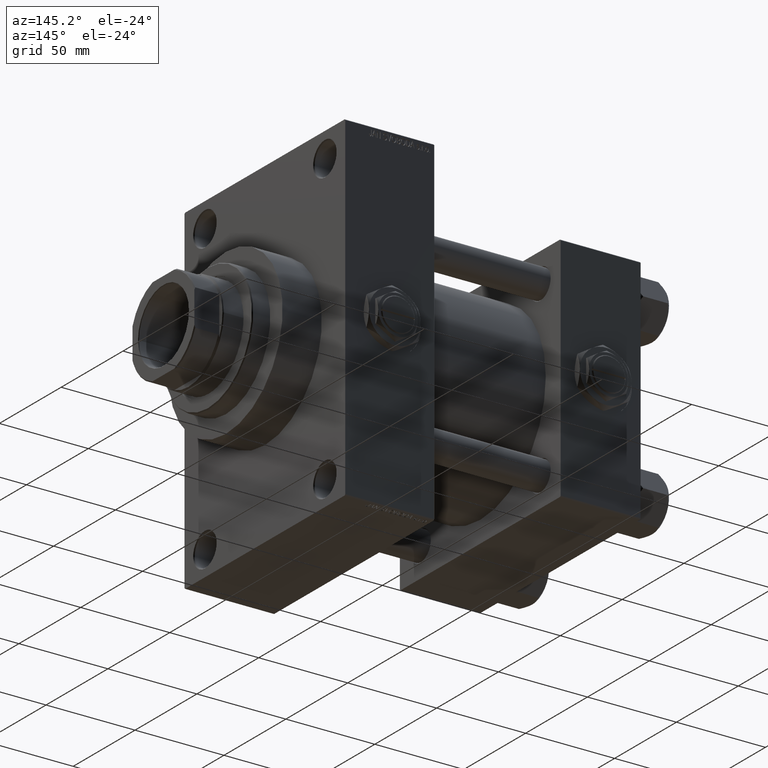
[diagram: clean part render]
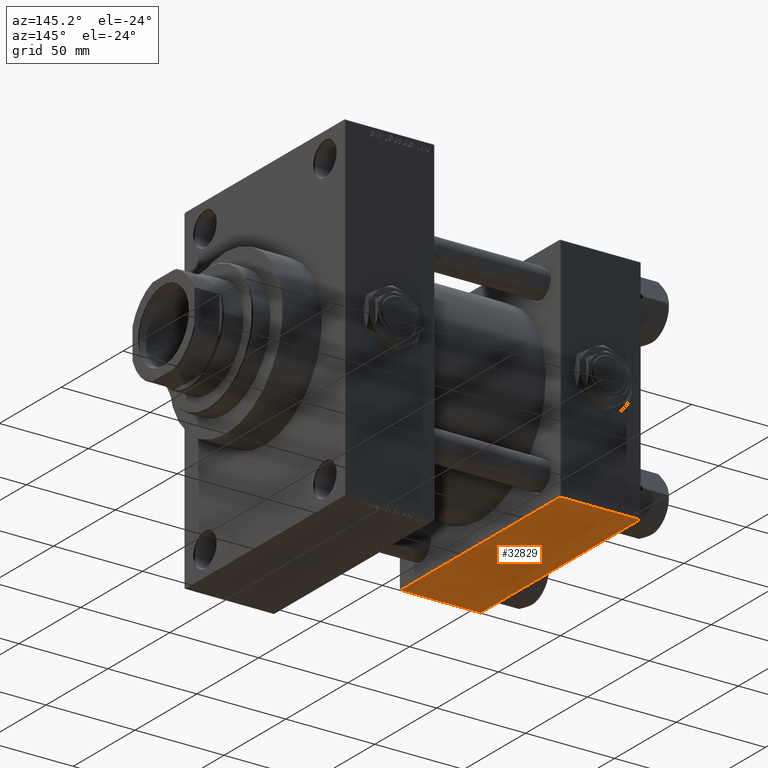
[diagram: same view with one face highlighted and labeled with its STEP entity id]
A machine part, auxiliary view. The second image highlights one B-rep face of the part: STEP entity #32829.
In plain terms, the highlighted planar face has unit normal (0, 0, -1).
Its self-contained STEP definition (entity closure, byte-faithful):
#2231 = DIRECTION ( 'NONE',  ( 0.000000000000000000, -1.000000000000000000, -1.067522139062650425E-16 ) ) ;
#2357 = VERTEX_POINT ( 'NONE', #40682 ) ;
#3667 = LINE ( 'NONE', #34437, #47727 ) ;
#5690 = ORIENTED_EDGE ( 'NONE', *, *, #28041, .T. ) ;
#7585 = CARTESIAN_POINT ( 'NONE',  ( 45.00000000000000000, 64.49999999999997158, -64.99999999999998579 ) ) ;
#9601 = PLANE ( 'NONE',  #12370 ) ;
#11979 = VECTOR ( 'NONE', #40056, 1000.000000000000000 ) ;
#12370 = AXIS2_PLACEMENT_3D ( 'NONE', #20465, #28553, #16933 ) ;
#16933 = DIRECTION ( 'NONE',  ( 0.000000000000000000, 1.000000000000000000, 1.067522139062650548E-16 ) ) ;
#17718 = EDGE_CURVE ( 'NONE', #39237, #49390, #25653, .T. ) ;
#18727 = CARTESIAN_POINT ( 'NONE',  ( 0.000000000000000000, -64.49999999999994316, -65.00000000000000000 ) ) ;
#20465 = CARTESIAN_POINT ( 'NONE',  ( 45.00000000000000000, 65.00000000000000000, -64.99999999999998579 ) ) ;
#21394 = CARTESIAN_POINT ( 'NONE',  ( 0.000000000000000000, 65.00000000000000000, -64.99999999999998579 ) ) ;
#22027 = DIRECTION ( 'NONE',  ( 1.000000000000000000, 0.000000000000000000, 0.000000000000000000 ) ) ;
#22980 = CARTESIAN_POINT ( 'NONE',  ( 45.00000000000000000, -64.49999999999994316, -65.00000000000000000 ) ) ;
#23759 = FACE_OUTER_BOUND ( 'NONE', #46925, .T. ) ;
#25653 = LINE ( 'NONE', #44348, #11979 ) ;
#27674 = EDGE_CURVE ( 'NONE', #2357, #29228, #28977, .T. ) ;
#28041 = EDGE_CURVE ( 'NONE', #49390, #29228, #3667, .T. ) ;
#28338 = VECTOR ( 'NONE', #2231, 1000.000000000000000 ) ;
#28553 = DIRECTION ( 'NONE',  ( 0.000000000000000000, 1.067522139062650548E-16, -1.000000000000000000 ) ) ;
#28977 = LINE ( 'NONE', #21394, #28338 ) ;
#29228 = VERTEX_POINT ( 'NONE', #18727 ) ;
#31764 = CARTESIAN_POINT ( 'NONE',  ( 45.00000000000000000, 64.49999999999997158, -64.99999999999998579 ) ) ;
#32829 = ADVANCED_FACE ( 'NONE', ( #23759 ), #9601, .T. ) ;
#34437 = CARTESIAN_POINT ( 'NONE',  ( 0.000000000000000000, -64.49999999999994316, -65.00000000000000000 ) ) ;
#35828 = ORIENTED_EDGE ( 'NONE', *, *, #27674, .F. ) ;
#38212 = ORIENTED_EDGE ( 'NONE', *, *, #49383, .T. ) ;
#39237 = VERTEX_POINT ( 'NONE', #31764 ) ;
#40056 = DIRECTION ( 'NONE',  ( 0.000000000000000000, -1.000000000000000000, -1.067522139062650425E-16 ) ) ;
#40682 = CARTESIAN_POINT ( 'NONE',  ( 0.000000000000000000, 64.49999999999997158, -64.99999999999998579 ) ) ;
#41299 = ORIENTED_EDGE ( 'NONE', *, *, #17718, .T. ) ;
#44348 = CARTESIAN_POINT ( 'NONE',  ( 45.00000000000000000, 65.00000000000000000, -64.99999999999998579 ) ) ;
#46202 = LINE ( 'NONE', #7585, #48878 ) ;
#46557 = DIRECTION ( 'NONE',  ( -1.000000000000000000, 0.000000000000000000, 0.000000000000000000 ) ) ;
#46925 = EDGE_LOOP ( 'NONE', ( #35828, #38212, #41299, #5690 ) ) ;
#47727 = VECTOR ( 'NONE', #46557, 1000.000000000000000 ) ;
#48878 = VECTOR ( 'NONE', #22027, 1000.000000000000000 ) ;
#49383 = EDGE_CURVE ( 'NONE', #2357, #39237, #46202, .T. ) ;
#49390 = VERTEX_POINT ( 'NONE', #22980 ) ;